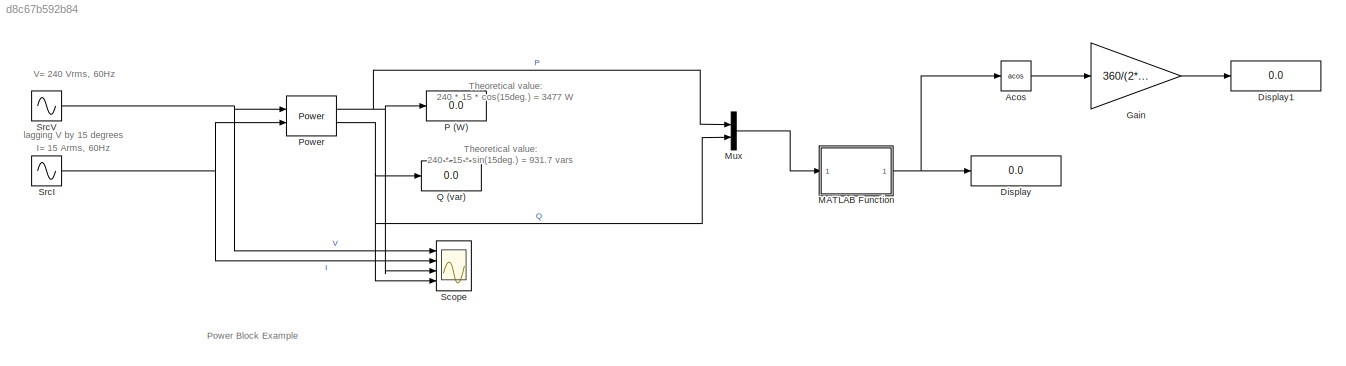
MODEL slx_d8c67b592b84
KIND model
CONFIG AbsTol = auto
CONFIG EnableMultiTasking = on
CONFIG FixedStep = auto
CONFIG MaxStep = 50e-6
CONFIG MinStep = auto
CONFIG PreLoadFcn = Ts=50e-6;\n
CONFIG RelTol = 1e-4
CONFIG SampleTimeConstraint = Unconstrained
CONFIG SolverName = ode23tb
CONFIG StartTime = 0.0
CONFIG StopTime = 0.1
BLOCK [Trigonometry] Acos
  Operator = acos
  Ports = [1, 1]
BLOCK [Display] Display
  Decimation = 1
  Ports = [1]
BLOCK [Display] Display1
  Decimation = 1
  Ports = [1]
BLOCK [Gain] Gain
  Gain = 360/(2*pi)
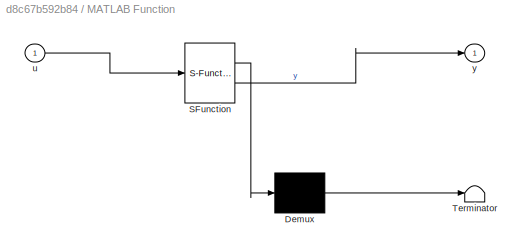
BLOCK [SubSystem] MATLAB Function
  ErrorFcn = Stateflow.Translate.translate
  PermitHierarchicalResolution = ExplicitOnly
  Ports = [1, 1]
  RequestExecContextInheritance = off
  SFBlockType = MATLAB Function
  TreatAsAtomicUnit = on
BLOCK [Demux] MATLAB Function/ Demux 
  Outputs = 1
  Ports = [1, 1]
BLOCK [S-Function] MATLAB Function/ SFunction 
  EnableBusSupport = on
  FunctionName = sf_sfun
  PortCounts = [1 2]
  Ports = [1, 2]
  SFcnIsStateOwnerBlock = off
  SFunctionDeploymentMode = off
  Tag = Stateflow S-Function 2
BLOCK [Terminator] MATLAB Function/ Terminator 
BLOCK [Inport] MATLAB Function/u
BLOCK [Outport] MATLAB Function/y
BLOCK [Mux] Mux
  DisplayOption = bar
  Inputs = 2
  Ports = [2, 1]
BLOCK [Display] P (W)
  Ports = [1]
BLOCK [Reference] Power  REF=spsPowerLib/Power
  Ports = [2, 2]
  SourceBlock = spsPowerLib/Power
  SourceProductBaseCode = PS
  SourceType = Power
BLOCK [Display] Q (var)
  Ports = [1]
BLOCK [Scope] Scope
  Floating = off
  NumInputPorts = 4
  Ports = [4]
  ScopeSpecificationString = Simulink.scopes.TimeScopeBlockCfg('CurrentConfiguration', extmgr.ConfigurationSet(extmgr.Configuration('Core','General UI',true),extmgr.Configuration('Core','Source UI',true),extmgr.Configuration('Sources','WiredSimulink',true,'DataLoggingSaveFormat','StructureWithTime','DataLoggingDecimation','1','DataLoggingDecimateData',true),extmgr.Configuration('Visuals','Time Domain',true,'SerializedDisplays...<+3654ch>
BLOCK [Sin] SrcI
  Amplitude = 15*sqrt(2)
  Frequency = 2*pi*60
  Phase = -15 * (pi/180)
  Ports = [0, 1]
  SampleTime = Ts
BLOCK [Sin] SrcV
  Amplitude = 240*sqrt(2)
  Frequency = 2*pi*60
  Ports = [0, 1]
  SampleTime = Ts
ANNOTATION (root): I= 15 Arms, 60Hz lagging V by 15 degrees
ANNOTATION (root): Power Block Example
ANNOTATION (root): Theoretical value: 240 * 15 * cos(15deg.) = 3477 W
ANNOTATION (root): Theoretical value: 240 * 15 * sin(15deg.) = 931.7 vars
ANNOTATION (root): V= 240 Vrms, 60Hz
LINE Acos:1 -> Gain:1
LINE Gain:1 -> Display1:1
NET MATLAB Function:1 -> Acos:1, Display:1
LINE Mux:1 -> MATLAB Function:1
NET Power:1 -> Mux:1, P (W):1, Scope:3
NET Power:2 -> Mux:2, Q (var):1, Scope:4
NET SrcI:1 -> Power:2, Scope:2
NET SrcV:1 -> Power:1, Scope:1
note: NET lines group one-source signal fan-out (src -> all destinations, sorted); 1:1 wires keep LINE
CHART MATLAB Function states=1 transitions=1
  STATE_LABEL 'eML_blk_kernel()'
  STATE_LABEL 'SCRIPT:\nfunction y = fcn(u)\n\ny = u(1)/(sqrt((u(1)*u(1))+u(2)*u(2)));\n'
CHART  states=0 transitions=0
